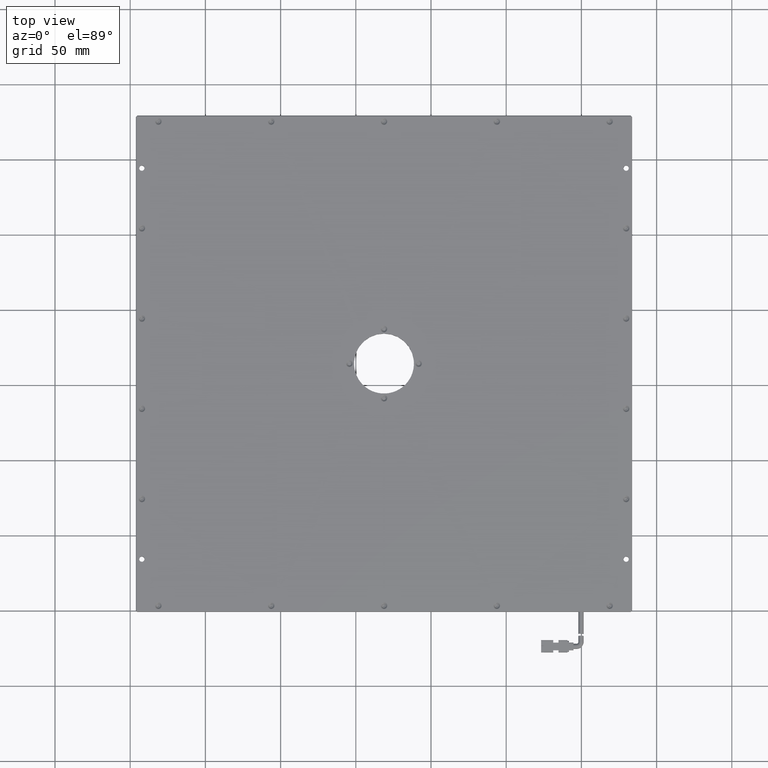
[diagram: clean part render]
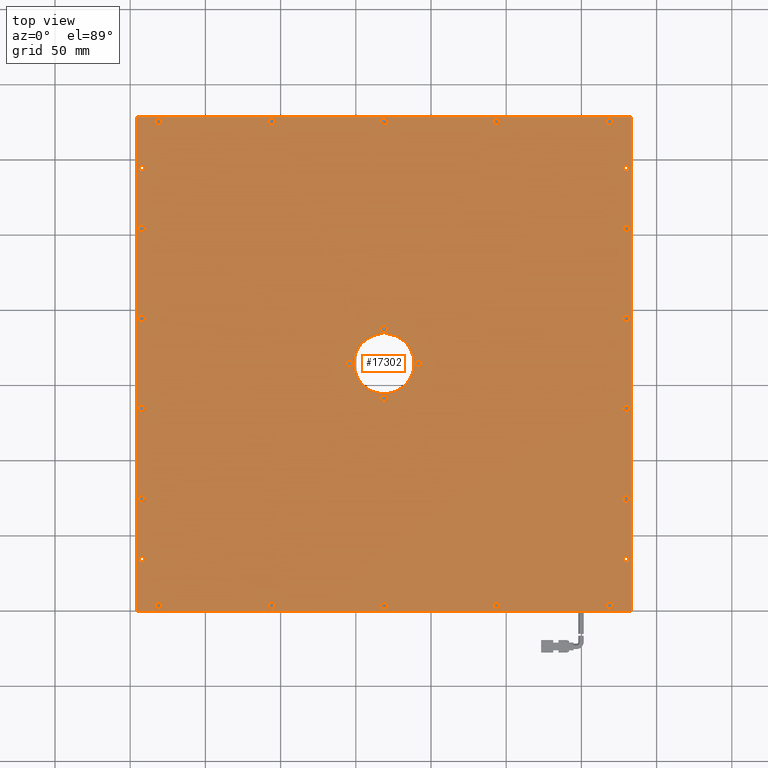
[diagram: same view with one face highlighted and labeled with its STEP entity id]
A machine part, top view. The second image highlights one B-rep face of the part: STEP entity #17302.
In plain terms, the highlighted planar face has unit normal (0, -0, 1).
Its self-contained STEP definition (entity closure, byte-faithful):
#33 = CARTESIAN_POINT ( 'NONE',  ( 127.9560923609355300, 194.3065740479059700, 11.00000000001909900 ) ) ;
#52 = ORIENTED_EDGE ( 'NONE', *, *, #5779, .T. ) ;
#147 = ORIENTED_EDGE ( 'NONE', *, *, #25554, .T. ) ;
#316 = AXIS2_PLACEMENT_3D ( 'NONE', #30000, #24757, #29682 ) ;
#416 = EDGE_LOOP ( 'NONE', ( #20714, #13644 ) ) ;
#508 = VERTEX_POINT ( 'NONE', #6118 ) ;
#514 = VERTEX_POINT ( 'NONE', #29227 ) ;
#544 = CARTESIAN_POINT ( 'NONE',  ( 43.75609236093549700, -98.89342595213524600, 11.00000000006184600 ) ) ;
#604 = DIRECTION ( 'NONE',  ( 1.000000000000000000, 0.0000000000000000000, 0.0000000000000000000 ) ) ;
#681 = DIRECTION ( 'NONE',  ( 1.000000000000000000, 0.0000000000000000000, 0.0000000000000000000 ) ) ;
#701 = ORIENTED_EDGE ( 'NONE', *, *, #27179, .T. ) ;
#720 = AXIS2_PLACEMENT_3D ( 'NONE', #2080, #27772, #6787 ) ;
#838 = VERTEX_POINT ( 'NONE', #2046 ) ;
#866 = CARTESIAN_POINT ( 'NONE',  ( -31.24390763906448100, 225.3065740479060500, 11.00000000000500200 ) ) ;
#975 = DIRECTION ( 'NONE',  ( 0.0000000000000000000, 0.0000000000000000000, -1.000000000000000000 ) ) ;
#1015 = EDGE_LOOP ( 'NONE', ( #21600, #27274 ) ) ;
#1057 = DIRECTION ( 'NONE',  ( 1.000000000000000000, 0.0000000000000000000, 0.0000000000000000000 ) ) ;
#1175 = LINE ( 'NONE', #10988, #3589 ) ;
#1269 = EDGE_CURVE ( 'NONE', #15652, #14264, #33111, .T. ) ;
#1294 = EDGE_LOOP ( 'NONE', ( #22141, #10028 ) ) ;
#1316 = CARTESIAN_POINT ( 'NONE',  ( -181.2439076390644700, 225.3065740479060500, 11.00000000000500200 ) ) ;
#1332 = CARTESIAN_POINT ( 'NONE',  ( -106.2439076390644600, 225.3065740479060500, 11.00000000000500200 ) ) ;
#1427 = ORIENTED_EDGE ( 'NONE', *, *, #20420, .T. ) ;
#1441 = CARTESIAN_POINT ( 'NONE',  ( 120.9560923609085100, -96.69342595209401700, 11.00000000000500200 ) ) ;
#1525 = DIRECTION ( 'NONE',  ( -0.0000000000000000000, 0.0000000000000000000, -1.000000000000000000 ) ) ;
#1578 = DIRECTION ( 'NONE',  ( -0.0000000000000000000, 0.0000000000000000000, -1.000000000000000000 ) ) ;
#1599 = CARTESIAN_POINT ( 'NONE',  ( -192.2439076390644700, 154.3065740479060000, 11.00000000000500200 ) ) ;
#1649 = CIRCLE ( 'NONE', #25173, 2.199999999973001300 ) ;
#1719 = EDGE_CURVE ( 'NONE', #5212, #28199, #7647, .T. ) ;
#1752 = EDGE_CURVE ( 'NONE', #14561, #838, #20515, .T. ) ;
#1768 = VERTEX_POINT ( 'NONE', #19360 ) ;
#1794 = CARTESIAN_POINT ( 'NONE',  ( -31.24390763906448100, -96.69342595209404600, 11.00000000000500200 ) ) ;
#1800 = ORIENTED_EDGE ( 'NONE', *, *, #23138, .T. ) ;
#1896 = CARTESIAN_POINT ( 'NONE',  ( 131.9560923609894600, 34.30657404790599000, 11.00000000011868900 ) ) ;
#2046 = CARTESIAN_POINT ( 'NONE',  ( -104.0439076390573800, 225.3065740479060500, 11.00000000000500200 ) ) ;
#2051 = EDGE_CURVE ( 'NONE', #19882, #33116, #16905, .T. ) ;
#2080 = CARTESIAN_POINT ( 'NONE',  ( -192.2439076390644700, -25.69342595209400700, 11.00000000000500200 ) ) ;
#2108 = AXIS2_PLACEMENT_3D ( 'NONE', #27863, #17732, #7635 ) ;
#2138 = CARTESIAN_POINT ( 'NONE',  ( 133.2560923609355500, 228.8065740479060000, 11.00000000001909400 ) ) ;
#2197 = EDGE_LOOP ( 'NONE', ( #15312, #8817 ) ) ;
#2245 = DIRECTION ( 'NONE',  ( 0.0000000000000000000, 0.0000000000000000000, -1.000000000000000000 ) ) ;
#2280 = CIRCLE ( 'NONE', #27025, 2.199999999995733400 ) ;
#2386 = EDGE_CURVE ( 'NONE', #508, #25226, #30108, .T. ) ;
#2421 = CARTESIAN_POINT ( 'NONE',  ( 133.2560923609355800, 229.3065740479060500, 11.00000000001909900 ) ) ;
#2534 = AXIS2_PLACEMENT_3D ( 'NONE', #2718, #15683, #10313 ) ;
#2602 = VECTOR ( 'NONE', #14455, 1000.000000000000000 ) ;
#2714 = EDGE_CURVE ( 'NONE', #1768, #29849, #1175, .T. ) ;
#2718 = CARTESIAN_POINT ( 'NONE',  ( 129.7560923609355300, -65.69342595209401700, 11.00000000001909900 ) ) ;
#2800 = CARTESIAN_POINT ( 'NONE',  ( 129.7560923609355300, 34.30657404790599000, 11.00000000011868900 ) ) ;
#2960 = DIRECTION ( 'NONE',  ( 1.000000000000000000, 0.0000000000000000000, 0.0000000000000000000 ) ) ;
#3006 = FACE_BOUND ( 'NONE', #19693, .T. ) ;
#3007 = CARTESIAN_POINT ( 'NONE',  ( 129.7560923609355300, 194.3065740479059700, 11.00000000001909900 ) ) ;
#3060 = EDGE_CURVE ( 'NONE', #8221, #4423, #20779, .T. ) ;
#3066 = DIRECTION ( 'NONE',  ( 1.000000000000000000, 0.0000000000000000000, 0.0000000000000000000 ) ) ;
#3075 = CARTESIAN_POINT ( 'NONE',  ( 118.7560923609355100, 225.3065740479061100, 11.00000000000500200 ) ) ;
#3079 = AXIS2_PLACEMENT_3D ( 'NONE', #18876, #8688, #23982 ) ;
#3134 = CIRCLE ( 'NONE', #21048, 2.200000000053936600 ) ;
#3195 = DIRECTION ( 'NONE',  ( 0.0000000000000000000, 0.0000000000000000000, -1.000000000000000000 ) ) ;
#3254 = EDGE_CURVE ( 'NONE', #33116, #19882, #31546, .T. ) ;
#3290 = VERTEX_POINT ( 'NONE', #25300 ) ;
#3398 = FACE_BOUND ( 'NONE', #14536, .T. ) ;
#3454 = CARTESIAN_POINT ( 'NONE',  ( -29.04390763906874900, 225.3065740479060500, 11.00000000000500200 ) ) ;
#3586 = CARTESIAN_POINT ( 'NONE',  ( -192.2439076390644700, 34.30657404790599000, 11.00000000000500200 ) ) ;
#3589 = VECTOR ( 'NONE', #5929, 1000.000000000000000 ) ;
#3646 = DIRECTION ( 'NONE',  ( 0.0000000000000000000, -1.000000000000000000, 0.0000000000000000000 ) ) ;
#4003 = VERTEX_POINT ( 'NONE', #18270 ) ;
#4070 = CIRCLE ( 'NONE', #28609, 2.200000000053936600 ) ;
#4104 = EDGE_CURVE ( 'NONE', #22257, #31822, #16161, .T. ) ;
#4198 = FACE_BOUND ( 'NONE', #14944, .T. ) ;
#4423 = VERTEX_POINT ( 'NONE', #31004 ) ;
#4431 = CIRCLE ( 'NONE', #26958, 2.199999999937529700 ) ;
#4499 = VERTEX_POINT ( 'NONE', #10161 ) ;
#4514 = ORIENTED_EDGE ( 'NONE', *, *, #5119, .F. ) ;
#4575 = ORIENTED_EDGE ( 'NONE', *, *, #21381, .T. ) ;
#4618 = FACE_BOUND ( 'NONE', #13756, .T. ) ;
#4785 = CARTESIAN_POINT ( 'NONE',  ( -190.0439076391269600, -25.69342595209400700, 11.00000000000500200 ) ) ;
#5091 = CARTESIAN_POINT ( 'NONE',  ( -29.04390763901190600, 41.30657404790602500, 10.99999999994815900 ) ) ;
#5119 = EDGE_CURVE ( 'NONE', #27300, #1768, #24681, .T. ) ;
#5195 = DIRECTION ( 'NONE',  ( -0.0000000000000000000, 0.0000000000000000000, -1.000000000000000000 ) ) ;
#5198 = DIRECTION ( 'NONE',  ( 1.000000000000000000, 0.0000000000000000000, 0.0000000000000000000 ) ) ;
#5212 = VERTEX_POINT ( 'NONE', #1896 ) ;
#5375 = DIRECTION ( 'NONE',  ( -0.0000000000000000000, 0.0000000000000000000, -1.000000000000000000 ) ) ;
#5431 = DIRECTION ( 'NONE',  ( -0.0000000000000000000, 0.0000000000000000000, -1.000000000000000000 ) ) ;
#5438 = CIRCLE ( 'NONE', #720, 2.199999999937529700 ) ;
#5443 = CARTESIAN_POINT ( 'NONE',  ( 131.5560923609355100, -65.69342595209401700, 11.00000000001909900 ) ) ;
#5563 = DIRECTION ( 'NONE',  ( 1.000000000000000000, 0.0000000000000000000, 0.0000000000000000000 ) ) ;
#5598 = CARTESIAN_POINT ( 'NONE',  ( -108.4439076390715500, 225.3065740479060500, 11.00000000000500200 ) ) ;
#5616 = CARTESIAN_POINT ( 'NONE',  ( -104.0439076390573800, -96.69342595209406000, 11.00000000000500200 ) ) ;
#5630 = AXIS2_PLACEMENT_3D ( 'NONE', #29123, #975, #11276 ) ;
#5633 = CARTESIAN_POINT ( 'NONE',  ( -33.44390763911695100, 41.30657404790602500, 10.99999999994815900 ) ) ;
#5701 = CIRCLE ( 'NONE', #29700, 1.799999999999968300 ) ;
#5705 = DIRECTION ( 'NONE',  ( 1.000000000000000000, 0.0000000000000000000, 0.0000000000000000000 ) ) ;
#5735 = CARTESIAN_POINT ( 'NONE',  ( 129.7560923609355300, 94.30657404790598300, 11.00000000011868900 ) ) ;
#5757 = CARTESIAN_POINT ( 'NONE',  ( -192.2439076390644700, 194.3065740479059700, 11.00000000001909900 ) ) ;
#5779 = EDGE_CURVE ( 'NONE', #25419, #27421, #20135, .T. ) ;
#5783 = EDGE_LOOP ( 'NONE', ( #7708, #18981 ) ) ;
#5899 = DIRECTION ( 'NONE',  ( 1.000000000000000000, 0.0000000000000000000, 0.0000000000000000000 ) ) ;
#5905 = AXIS2_PLACEMENT_3D ( 'NONE', #29339, #16285, #3646 ) ;
#5922 = DIRECTION ( 'NONE',  ( -0.0000000000000000000, 0.0000000000000000000, -1.000000000000000000 ) ) ;
#5929 = DIRECTION ( 'NONE',  ( -0.0000000000000000000, 1.000000000000000000, 0.0000000000000000000 ) ) ;
#6023 = DIRECTION ( 'NONE',  ( -0.0000000000000000000, 0.0000000000000000000, -1.000000000000000000 ) ) ;
#6118 = CARTESIAN_POINT ( 'NONE',  ( -179.0439076390460100, -96.69342595209407400, 11.00000000000500200 ) ) ;
#6148 = DIRECTION ( 'NONE',  ( 1.000000000000000000, 0.0000000000000000000, 0.0000000000000000000 ) ) ;
#6162 = ORIENTED_EDGE ( 'NONE', *, *, #8274, .T. ) ;
#6198 = DIRECTION ( 'NONE',  ( 1.000000000000000000, 8.410780489584517900E-017, 8.410780489584517900E-017 ) ) ;
#6229 = EDGE_CURVE ( 'NONE', #19887, #3290, #25278, .T. ) ;
#6245 = DIRECTION ( 'NONE',  ( 1.000000000000000000, 0.0000000000000000000, 0.0000000000000000000 ) ) ;
#6317 = VERTEX_POINT ( 'NONE', #18044 ) ;
#6362 = CIRCLE ( 'NONE', #316, 2.200000000052576800 ) ;
#6387 = ORIENTED_EDGE ( 'NONE', *, *, #32771, .T. ) ;
#6407 = DIRECTION ( 'NONE',  ( 1.000000000000000000, 0.0000000000000000000, 0.0000000000000000000 ) ) ;
#6413 = DIRECTION ( 'NONE',  ( -0.0000000000000000000, 0.0000000000000000000, -1.000000000000000000 ) ) ;
#6414 = AXIS2_PLACEMENT_3D ( 'NONE', #28826, #5922, #5705 ) ;
#6620 = DIRECTION ( 'NONE',  ( 1.000000000000000000, 0.0000000000000000000, 0.0000000000000000000 ) ) ;
#6669 = CIRCLE ( 'NONE', #19507, 20.00000000000001800 ) ;
#6739 = CARTESIAN_POINT ( 'NONE',  ( 43.75609236093549700, -94.49342595205280300, 11.00000000006184600 ) ) ;
#6787 = DIRECTION ( 'NONE',  ( 1.000000000000000000, 0.0000000000000000000, 0.0000000000000000000 ) ) ;
#6949 = ORIENTED_EDGE ( 'NONE', *, *, #19142, .T. ) ;
#6953 = CARTESIAN_POINT ( 'NONE',  ( -194.4439076390020200, 154.3065740479060000, 11.00000000000500200 ) ) ;
#6983 = CIRCLE ( 'NONE', #25768, 2.200000000084828300 ) ;
#7023 = AXIS2_PLACEMENT_3D ( 'NONE', #32008, #29478, #6245 ) ;
#7062 = DIRECTION ( 'NONE',  ( -0.0000000000000000000, 0.0000000000000000000, -1.000000000000000000 ) ) ;
#7118 = CARTESIAN_POINT ( 'NONE',  ( -190.4439076390645200, -65.69342595209401700, 11.00000000001909900 ) ) ;
#7158 = DIRECTION ( 'NONE',  ( 1.000000000000000000, 0.0000000000000000000, 0.0000000000000000000 ) ) ;
#7233 = CIRCLE ( 'NONE', #32077, 1.799999999999968300 ) ;
#7370 = ORIENTED_EDGE ( 'NONE', *, *, #30140, .T. ) ;
#7425 = EDGE_CURVE ( 'NONE', #28199, #5212, #25695, .T. ) ;
#7526 = VECTOR ( 'NONE', #25301, 1000.000000000000000 ) ;
#7629 = DIRECTION ( 'NONE',  ( -0.0000000000000000000, 0.0000000000000000000, -1.000000000000000000 ) ) ;
#7635 = DIRECTION ( 'NONE',  ( 1.000000000000000000, 0.0000000000000000000, 0.0000000000000000000 ) ) ;
#7642 = AXIS2_PLACEMENT_3D ( 'NONE', #14621, #27225, #16876 ) ;
#7647 = CIRCLE ( 'NONE', #6414, 2.200000000053936600 ) ;
#7708 = ORIENTED_EDGE ( 'NONE', *, *, #17029, .T. ) ;
#7732 = EDGE_CURVE ( 'NONE', #22564, #27096, #20821, .T. ) ;
#7761 = AXIS2_PLACEMENT_3D ( 'NONE', #33226, #12605, #25413 ) ;
#7830 = CARTESIAN_POINT ( 'NONE',  ( -29.04390763901190600, 87.30657404790598300, 10.99999999994815900 ) ) ;
#7848 = VERTEX_POINT ( 'NONE', #16773 ) ;
#8188 = CIRCLE ( 'NONE', #10505, 2.199999999937529700 ) ;
#8221 = VERTEX_POINT ( 'NONE', #31169 ) ;
#8260 = CIRCLE ( 'NONE', #2108, 2.199999999937529700 ) ;
#8274 = EDGE_CURVE ( 'NONE', #32684, #11418, #2280, .T. ) ;
#8309 = DIRECTION ( 'NONE',  ( 1.000000000000000000, 0.0000000000000000000, 0.0000000000000000000 ) ) ;
#8340 = EDGE_CURVE ( 'NONE', #29849, #30952, #15501, .T. ) ;
#8362 = DIRECTION ( 'NONE',  ( -0.0000000000000000000, 0.0000000000000000000, -1.000000000000000000 ) ) ;
#8497 = DIRECTION ( 'NONE',  ( -0.0000000000000000000, 0.0000000000000000000, -1.000000000000000000 ) ) ;
#8644 = ORIENTED_EDGE ( 'NONE', *, *, #1752, .T. ) ;
#8688 = DIRECTION ( 'NONE',  ( -0.0000000000000000000, -9.856383386047164300E-017, -1.000000000000000000 ) ) ;
#8745 = DIRECTION ( 'NONE',  ( 0.0000000000000000000, 0.0000000000000000000, -1.000000000000000000 ) ) ;
#8762 = DIRECTION ( 'NONE',  ( 1.000000000000000000, 0.0000000000000000000, 0.0000000000000000000 ) ) ;
#8817 = ORIENTED_EDGE ( 'NONE', *, *, #9297, .T. ) ;
#8886 = CIRCLE ( 'NONE', #22380, 2.199999999995733400 ) ;
#8981 = DIRECTION ( 'NONE',  ( 1.000000000000000000, 0.0000000000000000000, 0.0000000000000000000 ) ) ;
#9068 = CARTESIAN_POINT ( 'NONE',  ( -192.2439076390644700, -65.69342595209401700, 11.00000000001909900 ) ) ;
#9166 = VERTEX_POINT ( 'NONE', #28516 ) ;
#9297 = EDGE_CURVE ( 'NONE', #22547, #9674, #29858, .T. ) ;
#9392 = ORIENTED_EDGE ( 'NONE', *, *, #3060, .T. ) ;
#9563 = CARTESIAN_POINT ( 'NONE',  ( 129.7560923609355300, 154.3065740479060000, 11.00000000011868900 ) ) ;
#9674 = VERTEX_POINT ( 'NONE', #1441 ) ;
#9887 = EDGE_CURVE ( 'NONE', #28131, #16238, #24175, .T. ) ;
#9992 = CIRCLE ( 'NONE', #11547, 2.199999999937529700 ) ;
#10028 = ORIENTED_EDGE ( 'NONE', *, *, #20439, .T. ) ;
#10069 = CARTESIAN_POINT ( 'NONE',  ( -181.2439076390644700, -96.69342595209407400, 11.00000000000500200 ) ) ;
#10093 = EDGE_CURVE ( 'NONE', #21376, #24429, #32130, .T. ) ;
#10161 = CARTESIAN_POINT ( 'NONE',  ( -6.043907638987350100, 64.30657404790579800, 10.99999999994815900 ) ) ;
#10177 = FACE_BOUND ( 'NONE', #32117, .T. ) ;
#10225 = CARTESIAN_POINT ( 'NONE',  ( -8.243907639064490300, 64.30657404790579800, 10.99999999994815900 ) ) ;
#10264 = AXIS2_PLACEMENT_3D ( 'NONE', #10225, #5195, #2960 ) ;
#10313 = DIRECTION ( 'NONE',  ( 1.000000000000000000, 0.0000000000000000000, 0.0000000000000000000 ) ) ;
#10315 = CIRCLE ( 'NONE', #23817, 2.199999999973001300 ) ;
#10332 = CIRCLE ( 'NONE', #13772, 1.799999999999968300 ) ;
#10344 = DIRECTION ( 'NONE',  ( 0.0000000000000000000, 0.0000000000000000000, -1.000000000000000000 ) ) ;
#10505 = AXIS2_PLACEMENT_3D ( 'NONE', #19412, #19726, #14567 ) ;
#10514 = AXIS2_PLACEMENT_3D ( 'NONE', #32175, #21783, #1057 ) ;
#10524 = EDGE_LOOP ( 'NONE', ( #14512, #4514, #23884, #18216 ) ) ;
#10671 = DIRECTION ( 'NONE',  ( 0.0000000000000000000, 0.0000000000000000000, -1.000000000000000000 ) ) ;
#10737 = CARTESIAN_POINT ( 'NONE',  ( 120.9560923609085100, 225.3065740479061100, 11.00000000000500200 ) ) ;
#10938 = EDGE_CURVE ( 'NONE', #4003, #30854, #14624, .T. ) ;
#10988 = CARTESIAN_POINT ( 'NONE',  ( -195.7439076390643900, 229.3065740479060500, 11.00000000001909900 ) ) ;
#11011 = FACE_BOUND ( 'NONE', #27331, .T. ) ;
#11068 = DIRECTION ( 'NONE',  ( 1.000000000000000000, 0.0000000000000000000, 0.0000000000000000000 ) ) ;
#11276 = DIRECTION ( 'NONE',  ( 1.000000000000000000, 0.0000000000000000000, 0.0000000000000000000 ) ) ;
#11284 = EDGE_CURVE ( 'NONE', #30854, #4003, #27813, .T. ) ;
#11395 = CARTESIAN_POINT ( 'NONE',  ( -31.24390763906445700, 64.30657404790599700, 11.00000000001909900 ) ) ;
#11418 = VERTEX_POINT ( 'NONE', #29838 ) ;
#11424 = FACE_BOUND ( 'NONE', #1015, .T. ) ;
#11437 = AXIS2_PLACEMENT_3D ( 'NONE', #21406, #6023, #29371 ) ;
#11496 = EDGE_CURVE ( 'NONE', #16238, #28131, #13330, .T. ) ;
#11499 = CIRCLE ( 'NONE', #16852, 2.199999999973001300 ) ;
#11547 = AXIS2_PLACEMENT_3D ( 'NONE', #1599, #24164, #8762 ) ;
#11631 = ORIENTED_EDGE ( 'NONE', *, *, #10938, .T. ) ;
#11656 = CIRCLE ( 'NONE', #7023, 2.200000000084828300 ) ;
#11715 = EDGE_LOOP ( 'NONE', ( #23035, #19830 ) ) ;
#11761 = CIRCLE ( 'NONE', #27347, 2.200000000052520800 ) ;
#11843 = ORIENTED_EDGE ( 'NONE', *, *, #1719, .T. ) ;
#12110 = VERTEX_POINT ( 'NONE', #28862 ) ;
#12355 = VERTEX_POINT ( 'NONE', #17581 ) ;
#12466 = AXIS2_PLACEMENT_3D ( 'NONE', #21796, #6413, #8981 ) ;
#12543 = CARTESIAN_POINT ( 'NONE',  ( -192.2439076390644700, 194.3065740479059700, 11.00000000001909900 ) ) ;
#12605 = DIRECTION ( 'NONE',  ( -0.0000000000000000000, 0.0000000000000000000, -1.000000000000000000 ) ) ;
#12778 = DIRECTION ( 'NONE',  ( 1.000000000000000000, 0.0000000000000000000, 0.0000000000000000000 ) ) ;
#12856 = EDGE_CURVE ( 'NONE', #9674, #22547, #10315, .T. ) ;
#12953 = DIRECTION ( 'NONE',  ( -0.0000000000000000000, 0.0000000000000000000, -1.000000000000000000 ) ) ;
#12957 = CARTESIAN_POINT ( 'NONE',  ( -194.0439076390644600, -65.69342595209401700, 11.00000000001909900 ) ) ;
#13073 = DIRECTION ( 'NONE',  ( 1.000000000000000000, 0.0000000000000000000, 0.0000000000000000000 ) ) ;
#13166 = CARTESIAN_POINT ( 'NONE',  ( -31.24390763906442800, 41.30657404790602500, 10.99999999994815900 ) ) ;
#13257 = DIRECTION ( 'NONE',  ( 1.000000000000000000, 0.0000000000000000000, 0.0000000000000000000 ) ) ;
#13330 = CIRCLE ( 'NONE', #5905, 2.200000000041224500 ) ;
#13371 = EDGE_LOOP ( 'NONE', ( #32201, #6387 ) ) ;
#13421 = FACE_BOUND ( 'NONE', #31483, .T. ) ;
#13503 = EDGE_CURVE ( 'NONE', #14340, #6317, #23998, .T. ) ;
#13504 = AXIS2_PLACEMENT_3D ( 'NONE', #1794, #1578, #24908 ) ;
#13507 = DIRECTION ( 'NONE',  ( 1.000000000000000000, 0.0000000000000000000, 0.0000000000000000000 ) ) ;
#13523 = DIRECTION ( 'NONE',  ( 0.0000000000000000000, -0.0000000000000000000, 1.000000000000000000 ) ) ;
#13544 = ORIENTED_EDGE ( 'NONE', *, *, #26786, .T. ) ;
#13549 = AXIS2_PLACEMENT_3D ( 'NONE', #10069, #7062, #17373 ) ;
#13644 = ORIENTED_EDGE ( 'NONE', *, *, #3254, .T. ) ;
#13739 = EDGE_CURVE ( 'NONE', #7848, #9166, #8260, .T. ) ;
#13756 = EDGE_LOOP ( 'NONE', ( #31473, #26467 ) ) ;
#13762 = DIRECTION ( 'NONE',  ( -0.0000000000000000000, 0.0000000000000000000, -1.000000000000000000 ) ) ;
#13772 = AXIS2_PLACEMENT_3D ( 'NONE', #9068, #8745, #6620 ) ;
#13920 = CARTESIAN_POINT ( 'NONE',  ( 116.5560923609625100, -96.69342595209401700, 11.00000000000500200 ) ) ;
#13950 = CARTESIAN_POINT ( 'NONE',  ( -29.04390763906874900, -96.69342595209404600, 11.00000000000500200 ) ) ;
#14004 = LINE ( 'NONE', #2421, #7526 ) ;
#14094 = EDGE_CURVE ( 'NONE', #14216, #12355, #8188, .T. ) ;
#14104 = DIRECTION ( 'NONE',  ( 1.000000000000000000, 0.0000000000000000000, 0.0000000000000000000 ) ) ;
#14216 = VERTEX_POINT ( 'NONE', #6953 ) ;
#14232 = FACE_BOUND ( 'NONE', #29643, .T. ) ;
#14255 = ORIENTED_EDGE ( 'NONE', *, *, #2386, .T. ) ;
#14264 = VERTEX_POINT ( 'NONE', #25140 ) ;
#14340 = VERTEX_POINT ( 'NONE', #15456 ) ;
#14365 = ORIENTED_EDGE ( 'NONE', *, *, #11284, .T. ) ;
#14455 = DIRECTION ( 'NONE',  ( -1.000000000000000000, -6.123233995737446400E-017, 6.123233995736764800E-017 ) ) ;
#14466 = EDGE_CURVE ( 'NONE', #32119, #28474, #17812, .T. ) ;
#14512 = ORIENTED_EDGE ( 'NONE', *, *, #2714, .F. ) ;
#14536 = EDGE_LOOP ( 'NONE', ( #701, #28103 ) ) ;
#14561 = VERTEX_POINT ( 'NONE', #5598 ) ;
#14562 = ORIENTED_EDGE ( 'NONE', *, *, #31800, .T. ) ;
#14567 = DIRECTION ( 'NONE',  ( 1.000000000000000000, 0.0000000000000000000, 0.0000000000000000000 ) ) ;
#14621 = CARTESIAN_POINT ( 'NONE',  ( -106.2439076390644600, 225.3065740479060500, 11.00000000000500200 ) ) ;
#14624 = CIRCLE ( 'NONE', #15308, 2.200000000053936600 ) ;
#14631 = AXIS2_PLACEMENT_3D ( 'NONE', #31999, #19236, #27217 ) ;
#14816 = ORIENTED_EDGE ( 'NONE', *, *, #9887, .T. ) ;
#14944 = EDGE_LOOP ( 'NONE', ( #17458, #23142 ) ) ;
#14979 = AXIS2_PLACEMENT_3D ( 'NONE', #1332, #19257, #29375 ) ;
#14983 = DIRECTION ( 'NONE',  ( -0.0000000000000000000, 0.0000000000000000000, -1.000000000000000000 ) ) ;
#15105 = VECTOR ( 'NONE', #6198, 1000.000000000000000 ) ;
#15308 = AXIS2_PLACEMENT_3D ( 'NONE', #23518, #12953, #13073 ) ;
#15312 = ORIENTED_EDGE ( 'NONE', *, *, #12856, .T. ) ;
#15456 = CARTESIAN_POINT ( 'NONE',  ( -11.24390763906443700, 64.30657404790599700, 11.00000000001909900 ) ) ;
#15491 = CARTESIAN_POINT ( 'NONE',  ( 127.5560923608815800, -25.69342595209400700, 11.00000000011868900 ) ) ;
#15501 = LINE ( 'NONE', #23949, #15105 ) ;
#15508 = EDGE_CURVE ( 'NONE', #24482, #25343, #7233, .T. ) ;
#15537 = CARTESIAN_POINT ( 'NONE',  ( -183.4439076390829400, -96.69342595209407400, 11.00000000000500200 ) ) ;
#15629 = DIRECTION ( 'NONE',  ( 0.0000000000000000000, 0.0000000000000000000, -1.000000000000000000 ) ) ;
#15652 = VERTEX_POINT ( 'NONE', #13950 ) ;
#15683 = DIRECTION ( 'NONE',  ( 0.0000000000000000000, 0.0000000000000000000, -1.000000000000000000 ) ) ;
#15710 = DIRECTION ( 'NONE',  ( 1.000000000000000000, 0.0000000000000000000, 0.0000000000000000000 ) ) ;
#15797 = FACE_BOUND ( 'NONE', #24873, .T. ) ;
#15801 = ORIENTED_EDGE ( 'NONE', *, *, #6229, .T. ) ;
#15806 = CARTESIAN_POINT ( 'NONE',  ( 129.7560923609355300, -65.69342595209401700, 11.00000000001909900 ) ) ;
#16048 = ORIENTED_EDGE ( 'NONE', *, *, #13739, .T. ) ;
#16079 = EDGE_LOOP ( 'NONE', ( #7370, #8644 ) ) ;
#16161 = CIRCLE ( 'NONE', #26078, 2.200000000007085200 ) ;
#16165 = CARTESIAN_POINT ( 'NONE',  ( -31.24390763906448100, 87.30657404790598300, 10.99999999994815900 ) ) ;
#16207 = CIRCLE ( 'NONE', #24494, 2.200000000007085200 ) ;
#16219 = EDGE_CURVE ( 'NONE', #31783, #32592, #10332, .T. ) ;
#16238 = VERTEX_POINT ( 'NONE', #24140 ) ;
#16259 = CARTESIAN_POINT ( 'NONE',  ( -52.04390763897961800, 64.30657404790603900, 10.99999999994815900 ) ) ;
#16285 = DIRECTION ( 'NONE',  ( -0.0000000000000000000, -9.856383386047164300E-017, -1.000000000000000000 ) ) ;
#16309 = ORIENTED_EDGE ( 'NONE', *, *, #29220, .T. ) ;
#16345 = VERTEX_POINT ( 'NONE', #27283 ) ;
#16544 = DIRECTION ( 'NONE',  ( -0.0000000000000000000, 0.0000000000000000000, -1.000000000000000000 ) ) ;
#16637 = CARTESIAN_POINT ( 'NONE',  ( -183.4439076390829400, 225.3065740479060500, 11.00000000000500200 ) ) ;
#16656 = DIRECTION ( 'NONE',  ( -0.0000000000000000000, -0.0000000000000000000, -1.000000000000000000 ) ) ;
#16719 = AXIS2_PLACEMENT_3D ( 'NONE', #27251, #27145, #29501 ) ;
#16773 = CARTESIAN_POINT ( 'NONE',  ( -194.4439076390020200, 94.30657404790598300, 11.00000000000500200 ) ) ;
#16852 = AXIS2_PLACEMENT_3D ( 'NONE', #3075, #28972, #29087 ) ;
#16876 = DIRECTION ( 'NONE',  ( 1.000000000000000000, 0.0000000000000000000, 0.0000000000000000000 ) ) ;
#16905 = CIRCLE ( 'NONE', #20612, 1.799999999999996000 ) ;
#17019 = CIRCLE ( 'NONE', #10264, 2.200000000077140200 ) ;
#17029 = EDGE_CURVE ( 'NONE', #21757, #24683, #5438, .T. ) ;
#17171 = EDGE_CURVE ( 'NONE', #14264, #15652, #27493, .T. ) ;
#17302 = ADVANCED_FACE ( 'NONE', ( #32251, #31443, #15797, #18606, #22666, #30261, #10177, #24660, #11424, #13421, #17799, #32670, #11011, #4198, #14232, #23475, #27081, #20251, #3006, #33043, #26271, #30632, #23865, #3398, #23052, #4618, #19840, #31043 ), #23620, .T. ) ;
#17370 = VERTEX_POINT ( 'NONE', #16637 ) ;
#17373 = DIRECTION ( 'NONE',  ( 1.000000000000000000, 0.0000000000000000000, 0.0000000000000000000 ) ) ;
#17452 = CARTESIAN_POINT ( 'NONE',  ( 129.7560923609355300, 154.3065740479060000, 11.00000000011868900 ) ) ;
#17458 = ORIENTED_EDGE ( 'NONE', *, *, #30678, .T. ) ;
#17581 = CARTESIAN_POINT ( 'NONE',  ( -190.0439076391269600, 154.3065740479060000, 11.00000000000500200 ) ) ;
#17597 = CARTESIAN_POINT ( 'NONE',  ( 127.5560923608815800, 94.30657404790598300, 11.00000000011868900 ) ) ;
#17732 = DIRECTION ( 'NONE',  ( -0.0000000000000000000, 0.0000000000000000000, -1.000000000000000000 ) ) ;
#17799 = FACE_BOUND ( 'NONE', #2197, .T. ) ;
#17812 = CIRCLE ( 'NONE', #18703, 2.200000000053936600 ) ;
#18044 = CARTESIAN_POINT ( 'NONE',  ( -51.24390763906447400, 64.30657404790599700, 11.00000000001909900 ) ) ;
#18058 = CARTESIAN_POINT ( 'NONE',  ( -106.2439076390644600, -96.69342595209406000, 11.00000000000500200 ) ) ;
#18070 = AXIS2_PLACEMENT_3D ( 'NONE', #15806, #10671, #3066 ) ;
#18089 = CARTESIAN_POINT ( 'NONE',  ( -31.24390763906445700, 64.30657404790599700, 11.00000000001909900 ) ) ;
#18216 = ORIENTED_EDGE ( 'NONE', *, *, #8340, .F. ) ;
#18257 = CARTESIAN_POINT ( 'NONE',  ( 133.2560923609355300, -100.1934259520939900, 11.00000000001911900 ) ) ;
#18270 = CARTESIAN_POINT ( 'NONE',  ( 131.9560923609894600, 94.30657404790598300, 11.00000000011868900 ) ) ;
#18315 = CARTESIAN_POINT ( 'NONE',  ( 133.7560923609355300, 229.3065740479060500, 11.00000000001909900 ) ) ;
#18534 = DIRECTION ( 'NONE',  ( 1.000000000000000000, 0.0000000000000000000, -0.0000000000000000000 ) ) ;
#18555 = CARTESIAN_POINT ( 'NONE',  ( -181.2439076390644700, 225.3065740479060500, 11.00000000000500200 ) ) ;
#18558 = EDGE_LOOP ( 'NONE', ( #21501, #52 ) ) ;
#18606 = FACE_BOUND ( 'NONE', #32424, .T. ) ;
#18643 = EDGE_LOOP ( 'NONE', ( #24293, #27773 ) ) ;
#18703 = AXIS2_PLACEMENT_3D ( 'NONE', #28944, #8497, #681 ) ;
#18711 = ORIENTED_EDGE ( 'NONE', *, *, #7732, .T. ) ;
#18762 = CIRCLE ( 'NONE', #29215, 1.799999999999968300 ) ;
#18876 = CARTESIAN_POINT ( 'NONE',  ( 43.75609236093549700, 225.3065740479061100, 11.00000000006184600 ) ) ;
#18981 = ORIENTED_EDGE ( 'NONE', *, *, #22158, .T. ) ;
#19142 = EDGE_CURVE ( 'NONE', #27103, #4499, #25666, .T. ) ;
#19160 = EDGE_LOOP ( 'NONE', ( #18711, #16309 ) ) ;
#19236 = DIRECTION ( 'NONE',  ( -0.0000000000000000000, -9.856383386047164300E-017, -1.000000000000000000 ) ) ;
#19257 = DIRECTION ( 'NONE',  ( -0.0000000000000000000, 0.0000000000000000000, -1.000000000000000000 ) ) ;
#19360 = CARTESIAN_POINT ( 'NONE',  ( -195.7439076390643900, -100.1934259520941200, 11.00000000001911400 ) ) ;
#19412 = CARTESIAN_POINT ( 'NONE',  ( -192.2439076390644700, 154.3065740479060000, 11.00000000000500200 ) ) ;
#19507 = AXIS2_PLACEMENT_3D ( 'NONE', #18089, #31078, #30645 ) ;
#19690 = ORIENTED_EDGE ( 'NONE', *, *, #21364, .T. ) ;
#19693 = EDGE_LOOP ( 'NONE', ( #31390, #147 ) ) ;
#19726 = DIRECTION ( 'NONE',  ( -0.0000000000000000000, 0.0000000000000000000, -1.000000000000000000 ) ) ;
#19728 = CARTESIAN_POINT ( 'NONE',  ( -194.0439076390644600, 194.3065740479059700, 11.00000000001909900 ) ) ;
#19830 = ORIENTED_EDGE ( 'NONE', *, *, #25641, .T. ) ;
#19840 = FACE_BOUND ( 'NONE', #18558, .T. ) ;
#19882 = VERTEX_POINT ( 'NONE', #33221 ) ;
#19887 = VERTEX_POINT ( 'NONE', #5443 ) ;
#19921 = EDGE_CURVE ( 'NONE', #6317, #14340, #6669, .T. ) ;
#20034 = DIRECTION ( 'NONE',  ( -0.0000000000000000000, 0.0000000000000000000, -1.000000000000000000 ) ) ;
#20135 = CIRCLE ( 'NONE', #21004, 2.200000000052576800 ) ;
#20251 = FACE_BOUND ( 'NONE', #19160, .T. ) ;
#20253 = CARTESIAN_POINT ( 'NONE',  ( -192.2439076390644700, -65.69342595209401700, 11.00000000001909900 ) ) ;
#20420 = EDGE_CURVE ( 'NONE', #4499, #27103, #17019, .T. ) ;
#20439 = EDGE_CURVE ( 'NONE', #31822, #22257, #16207, .T. ) ;
#20460 = DIRECTION ( 'NONE',  ( 1.000000000000000000, 0.0000000000000000000, 0.0000000000000000000 ) ) ;
#20470 = EDGE_CURVE ( 'NONE', #16345, #28643, #6983, .T. ) ;
#20515 = CIRCLE ( 'NONE', #14979, 2.200000000007085200 ) ;
#20612 = AXIS2_PLACEMENT_3D ( 'NONE', #3007, #15629, #5563 ) ;
#20714 = ORIENTED_EDGE ( 'NONE', *, *, #2051, .T. ) ;
#20779 = CIRCLE ( 'NONE', #29278, 2.200000000053936600 ) ;
#20821 = CIRCLE ( 'NONE', #11437, 2.199999999937529700 ) ;
#20887 = DIRECTION ( 'NONE',  ( -0.0000000000000000000, 0.0000000000000000000, -1.000000000000000000 ) ) ;
#20945 = ORIENTED_EDGE ( 'NONE', *, *, #7425, .T. ) ;
#21004 = AXIS2_PLACEMENT_3D ( 'NONE', #16165, #21363, #31302 ) ;
#21048 = AXIS2_PLACEMENT_3D ( 'NONE', #25287, #27870, #29906 ) ;
#21073 = ORIENTED_EDGE ( 'NONE', *, *, #17171, .T. ) ;
#21139 = AXIS2_PLACEMENT_3D ( 'NONE', #32101, #24512, #22040 ) ;
#21157 = EDGE_LOOP ( 'NONE', ( #1800, #16048 ) ) ;
#21276 = DIRECTION ( 'NONE',  ( -0.0000000000000000000, 0.0000000000000000000, -1.000000000000000000 ) ) ;
#21363 = DIRECTION ( 'NONE',  ( -0.0000000000000000000, 0.0000000000000000000, -1.000000000000000000 ) ) ;
#21364 = EDGE_CURVE ( 'NONE', #11418, #32684, #8886, .T. ) ;
#21376 = VERTEX_POINT ( 'NONE', #544 ) ;
#21381 = EDGE_CURVE ( 'NONE', #17370, #12110, #29393, .T. ) ;
#21406 = CARTESIAN_POINT ( 'NONE',  ( -192.2439076390644700, 34.30657404790599000, 11.00000000000500200 ) ) ;
#21448 = DIRECTION ( 'NONE',  ( -0.0000000000000000000, 0.0000000000000000000, -1.000000000000000000 ) ) ;
#21501 = ORIENTED_EDGE ( 'NONE', *, *, #23233, .T. ) ;
#21573 = EDGE_CURVE ( 'NONE', #29907, #514, #1649, .T. ) ;
#21584 = CIRCLE ( 'NONE', #31209, 2.200000000018465000 ) ;
#21600 = ORIENTED_EDGE ( 'NONE', *, *, #10093, .T. ) ;
#21737 = AXIS2_PLACEMENT_3D ( 'NONE', #18555, #21276, #5899 ) ;
#21757 = VERTEX_POINT ( 'NONE', #4785 ) ;
#21783 = DIRECTION ( 'NONE',  ( -0.0000000000000000000, 0.0000000000000000000, -1.000000000000000000 ) ) ;
#21796 = CARTESIAN_POINT ( 'NONE',  ( -192.2439076390644700, -25.69342595209400700, 11.00000000000500200 ) ) ;
#21800 = AXIS2_PLACEMENT_3D ( 'NONE', #18315, #13523, #18534 ) ;
#21829 = EDGE_CURVE ( 'NONE', #29394, #33168, #11761, .T. ) ;
#22040 = DIRECTION ( 'NONE',  ( 1.000000000000000000, 0.0000000000000000000, 0.0000000000000000000 ) ) ;
#22141 = ORIENTED_EDGE ( 'NONE', *, *, #4104, .T. ) ;
#22158 = EDGE_CURVE ( 'NONE', #24683, #21757, #30525, .T. ) ;
#22257 = VERTEX_POINT ( 'NONE', #5616 ) ;
#22318 = AXIS2_PLACEMENT_3D ( 'NONE', #11395, #16656, #26771 ) ;
#22346 = ORIENTED_EDGE ( 'NONE', *, *, #33074, .T. ) ;
#22380 = AXIS2_PLACEMENT_3D ( 'NONE', #866, #8362, #11068 ) ;
#22474 = AXIS2_PLACEMENT_3D ( 'NONE', #5735, #23704, #8309 ) ;
#22547 = VERTEX_POINT ( 'NONE', #13920 ) ;
#22564 = VERTEX_POINT ( 'NONE', #31941 ) ;
#22666 = FACE_BOUND ( 'NONE', #1294, .T. ) ;
#22851 = CIRCLE ( 'NONE', #27589, 2.200000000018465000 ) ;
#22909 = EDGE_LOOP ( 'NONE', ( #6162, #19690 ) ) ;
#22993 = ORIENTED_EDGE ( 'NONE', *, *, #28639, .T. ) ;
#23035 = ORIENTED_EDGE ( 'NONE', *, *, #16219, .T. ) ;
#23052 = FACE_BOUND ( 'NONE', #13371, .T. ) ;
#23138 = EDGE_CURVE ( 'NONE', #9166, #7848, #4431, .T. ) ;
#23142 = ORIENTED_EDGE ( 'NONE', *, *, #14094, .T. ) ;
#23152 = EDGE_CURVE ( 'NONE', #12110, #17370, #22851, .T. ) ;
#23233 = EDGE_CURVE ( 'NONE', #27421, #25419, #6362, .T. ) ;
#23475 = FACE_BOUND ( 'NONE', #21157, .T. ) ;
#23518 = CARTESIAN_POINT ( 'NONE',  ( 129.7560923609355300, 94.30657404790598300, 11.00000000011868900 ) ) ;
#23568 = AXIS2_PLACEMENT_3D ( 'NONE', #30153, #14983, #7158 ) ;
#23620 = PLANE ( 'NONE',  #21800 ) ;
#23704 = DIRECTION ( 'NONE',  ( -0.0000000000000000000, 0.0000000000000000000, -1.000000000000000000 ) ) ;
#23817 = AXIS2_PLACEMENT_3D ( 'NONE', #25480, #25588, #12778 ) ;
#23865 = FACE_BOUND ( 'NONE', #11715, .T. ) ;
#23884 = ORIENTED_EDGE ( 'NONE', *, *, #32437, .F. ) ;
#23894 = EDGE_LOOP ( 'NONE', ( #32560, #22993 ) ) ;
#23949 = CARTESIAN_POINT ( 'NONE',  ( 133.7560923609355300, 228.8065740479060000, 11.00000000001906200 ) ) ;
#23982 = DIRECTION ( 'NONE',  ( 0.0000000000000000000, -1.000000000000000000, 0.0000000000000000000 ) ) ;
#23998 = CIRCLE ( 'NONE', #22318, 20.00000000000001800 ) ;
#24117 = CARTESIAN_POINT ( 'NONE',  ( 131.9560923609894600, -25.69342595209400700, 11.00000000011868900 ) ) ;
#24140 = CARTESIAN_POINT ( 'NONE',  ( 43.75609236093549700, 227.5065740479473400, 11.00000000006184600 ) ) ;
#24164 = DIRECTION ( 'NONE',  ( -0.0000000000000000000, 0.0000000000000000000, -1.000000000000000000 ) ) ;
#24175 = CIRCLE ( 'NONE', #3079, 2.200000000041224500 ) ;
#24293 = ORIENTED_EDGE ( 'NONE', *, *, #19921, .T. ) ;
#24429 = VERTEX_POINT ( 'NONE', #6739 ) ;
#24482 = VERTEX_POINT ( 'NONE', #19728 ) ;
#24494 = AXIS2_PLACEMENT_3D ( 'NONE', #18058, #20887, #13257 ) ;
#24512 = DIRECTION ( 'NONE',  ( -0.0000000000000000000, 0.0000000000000000000, -1.000000000000000000 ) ) ;
#24527 = CARTESIAN_POINT ( 'NONE',  ( -33.44390763911705700, 87.30657404790598300, 10.99999999994815900 ) ) ;
#24660 = FACE_BOUND ( 'NONE', #22909, .T. ) ;
#24681 = LINE ( 'NONE', #29833, #2602 ) ;
#24683 = VERTEX_POINT ( 'NONE', #26144 ) ;
#24757 = DIRECTION ( 'NONE',  ( -0.0000000000000000000, 0.0000000000000000000, -1.000000000000000000 ) ) ;
#24825 = EDGE_CURVE ( 'NONE', #24429, #21376, #28080, .T. ) ;
#24854 = DIRECTION ( 'NONE',  ( 1.000000000000000000, 0.0000000000000000000, 0.0000000000000000000 ) ) ;
#24873 = EDGE_LOOP ( 'NONE', ( #14255, #22346 ) ) ;
#24904 = ORIENTED_EDGE ( 'NONE', *, *, #1269, .T. ) ;
#24908 = DIRECTION ( 'NONE',  ( 1.000000000000000000, 0.0000000000000000000, 0.0000000000000000000 ) ) ;
#25140 = CARTESIAN_POINT ( 'NONE',  ( -33.44390763906021400, -96.69342595209404600, 11.00000000000500200 ) ) ;
#25141 = CARTESIAN_POINT ( 'NONE',  ( -194.4439076390020200, 34.30657404790599000, 11.00000000000500200 ) ) ;
#25173 = AXIS2_PLACEMENT_3D ( 'NONE', #29995, #1525, #24854 ) ;
#25203 = DIRECTION ( 'NONE',  ( 1.000000000000000000, 0.0000000000000000000, 0.0000000000000000000 ) ) ;
#25226 = VERTEX_POINT ( 'NONE', #15537 ) ;
#25278 = CIRCLE ( 'NONE', #2534, 1.799999999999996000 ) ;
#25287 = CARTESIAN_POINT ( 'NONE',  ( 129.7560923609355300, -25.69342595209400700, 11.00000000011868900 ) ) ;
#25300 = CARTESIAN_POINT ( 'NONE',  ( 127.9560923609355300, -65.69342595209401700, 11.00000000001909900 ) ) ;
#25301 = DIRECTION ( 'NONE',  ( 0.0000000000000000000, -1.000000000000000000, -0.0000000000000000000 ) ) ;
#25343 = VERTEX_POINT ( 'NONE', #31567 ) ;
#25413 = DIRECTION ( 'NONE',  ( 1.000000000000000000, 0.0000000000000000000, 0.0000000000000000000 ) ) ;
#25419 = VERTEX_POINT ( 'NONE', #24527 ) ;
#25480 = CARTESIAN_POINT ( 'NONE',  ( 118.7560923609355100, -96.69342595209401700, 11.00000000000500200 ) ) ;
#25554 = EDGE_CURVE ( 'NONE', #28474, #32119, #3134, .T. ) ;
#25588 = DIRECTION ( 'NONE',  ( -0.0000000000000000000, 0.0000000000000000000, -1.000000000000000000 ) ) ;
#25641 = EDGE_CURVE ( 'NONE', #32592, #31783, #18762, .T. ) ;
#25666 = CIRCLE ( 'NONE', #23568, 2.200000000077140200 ) ;
#25695 = CIRCLE ( 'NONE', #29283, 2.200000000053936600 ) ;
#25768 = AXIS2_PLACEMENT_3D ( 'NONE', #26498, #21448, #604 ) ;
#26078 = AXIS2_PLACEMENT_3D ( 'NONE', #26813, #31939, #31702 ) ;
#26144 = CARTESIAN_POINT ( 'NONE',  ( -194.4439076390020200, -25.69342595209400700, 11.00000000000500200 ) ) ;
#26251 = ORIENTED_EDGE ( 'NONE', *, *, #11496, .T. ) ;
#26271 = FACE_BOUND ( 'NONE', #416, .T. ) ;
#26330 = EDGE_LOOP ( 'NONE', ( #11843, #20945 ) ) ;
#26467 = ORIENTED_EDGE ( 'NONE', *, *, #20470, .T. ) ;
#26498 = CARTESIAN_POINT ( 'NONE',  ( -54.24390763906444600, 64.30657404790603900, 10.99999999994815900 ) ) ;
#26619 = CARTESIAN_POINT ( 'NONE',  ( -31.24390763906448100, 225.3065740479060500, 11.00000000000500200 ) ) ;
#26771 = DIRECTION ( 'NONE',  ( -1.000000000000000000, 0.0000000000000000000, 0.0000000000000000000 ) ) ;
#26786 = EDGE_CURVE ( 'NONE', #3290, #19887, #31418, .T. ) ;
#26813 = CARTESIAN_POINT ( 'NONE',  ( -106.2439076390644600, -96.69342595209406000, 11.00000000000500200 ) ) ;
#26874 = CARTESIAN_POINT ( 'NONE',  ( 43.75609236093549700, 223.1065740478648800, 11.00000000006184600 ) ) ;
#26958 = AXIS2_PLACEMENT_3D ( 'NONE', #31568, #13762, #14104 ) ;
#27025 = AXIS2_PLACEMENT_3D ( 'NONE', #26619, #31523, #6407 ) ;
#27081 = FACE_BOUND ( 'NONE', #26330, .T. ) ;
#27096 = VERTEX_POINT ( 'NONE', #25141 ) ;
#27103 = VERTEX_POINT ( 'NONE', #30176 ) ;
#27145 = DIRECTION ( 'NONE',  ( -0.0000000000000000000, -9.856383386047164300E-017, -1.000000000000000000 ) ) ;
#27179 = EDGE_CURVE ( 'NONE', #25343, #24482, #5701, .T. ) ;
#27217 = DIRECTION ( 'NONE',  ( 0.0000000000000000000, -1.000000000000000000, 0.0000000000000000000 ) ) ;
#27225 = DIRECTION ( 'NONE',  ( -0.0000000000000000000, 0.0000000000000000000, -1.000000000000000000 ) ) ;
#27251 = CARTESIAN_POINT ( 'NONE',  ( 43.75609236093549700, -96.69342595209403200, 11.00000000006184600 ) ) ;
#27274 = ORIENTED_EDGE ( 'NONE', *, *, #24825, .T. ) ;
#27283 = CARTESIAN_POINT ( 'NONE',  ( -56.44390763914927300, 64.30657404790603900, 10.99999999994815900 ) ) ;
#27300 = VERTEX_POINT ( 'NONE', #18257 ) ;
#27331 = EDGE_LOOP ( 'NONE', ( #14562, #9392 ) ) ;
#27347 = AXIS2_PLACEMENT_3D ( 'NONE', #13166, #5431, #15710 ) ;
#27421 = VERTEX_POINT ( 'NONE', #7830 ) ;
#27493 = CIRCLE ( 'NONE', #7761, 2.199999999995733400 ) ;
#27589 = AXIS2_PLACEMENT_3D ( 'NONE', #1316, #16544, #29476 ) ;
#27768 = DIRECTION ( 'NONE',  ( 1.000000000000000000, 0.0000000000000000000, 0.0000000000000000000 ) ) ;
#27772 = DIRECTION ( 'NONE',  ( -0.0000000000000000000, 0.0000000000000000000, -1.000000000000000000 ) ) ;
#27773 = ORIENTED_EDGE ( 'NONE', *, *, #13503, .T. ) ;
#27813 = CIRCLE ( 'NONE', #22474, 2.200000000053936600 ) ;
#27863 = CARTESIAN_POINT ( 'NONE',  ( -192.2439076390644700, 94.30657404790598300, 11.00000000000500200 ) ) ;
#27870 = DIRECTION ( 'NONE',  ( -0.0000000000000000000, 0.0000000000000000000, -1.000000000000000000 ) ) ;
#27879 = CARTESIAN_POINT ( 'NONE',  ( -108.4439076390715500, -96.69342595209406000, 11.00000000000500200 ) ) ;
#28080 = CIRCLE ( 'NONE', #16719, 2.200000000041224500 ) ;
#28103 = ORIENTED_EDGE ( 'NONE', *, *, #15508, .T. ) ;
#28131 = VERTEX_POINT ( 'NONE', #26874 ) ;
#28199 = VERTEX_POINT ( 'NONE', #32417 ) ;
#28474 = VERTEX_POINT ( 'NONE', #15491 ) ;
#28516 = CARTESIAN_POINT ( 'NONE',  ( -190.0439076391269600, 94.30657404790598300, 11.00000000000500200 ) ) ;
#28527 = CIRCLE ( 'NONE', #7642, 2.200000000007085200 ) ;
#28609 = AXIS2_PLACEMENT_3D ( 'NONE', #9563, #30004, #27768 ) ;
#28639 = EDGE_CURVE ( 'NONE', #514, #29907, #11499, .T. ) ;
#28643 = VERTEX_POINT ( 'NONE', #16259 ) ;
#28806 = EDGE_LOOP ( 'NONE', ( #1427, #6949 ) ) ;
#28826 = CARTESIAN_POINT ( 'NONE',  ( 129.7560923609355300, 34.30657404790599000, 11.00000000011868900 ) ) ;
#28862 = CARTESIAN_POINT ( 'NONE',  ( -179.0439076390460100, 225.3065740479060500, 11.00000000000500200 ) ) ;
#28863 = CIRCLE ( 'NONE', #21139, 2.200000000052520800 ) ;
#28944 = CARTESIAN_POINT ( 'NONE',  ( 129.7560923609355300, -25.69342595209400700, 11.00000000011868900 ) ) ;
#28972 = DIRECTION ( 'NONE',  ( -0.0000000000000000000, 0.0000000000000000000, -1.000000000000000000 ) ) ;
#29087 = DIRECTION ( 'NONE',  ( 1.000000000000000000, 0.0000000000000000000, 0.0000000000000000000 ) ) ;
#29123 = CARTESIAN_POINT ( 'NONE',  ( 129.7560923609355300, 194.3065740479059700, 11.00000000001909900 ) ) ;
#29215 = AXIS2_PLACEMENT_3D ( 'NONE', #20253, #10344, #20460 ) ;
#29220 = EDGE_CURVE ( 'NONE', #27096, #22564, #31031, .T. ) ;
#29227 = CARTESIAN_POINT ( 'NONE',  ( 116.5560923609625100, 225.3065740479061100, 11.00000000000500200 ) ) ;
#29278 = AXIS2_PLACEMENT_3D ( 'NONE', #17452, #20034, #25203 ) ;
#29283 = AXIS2_PLACEMENT_3D ( 'NONE', #2800, #5375, #30796 ) ;
#29339 = CARTESIAN_POINT ( 'NONE',  ( 43.75609236093549700, 225.3065740479061100, 11.00000000006184600 ) ) ;
#29371 = DIRECTION ( 'NONE',  ( 1.000000000000000000, 0.0000000000000000000, 0.0000000000000000000 ) ) ;
#29375 = DIRECTION ( 'NONE',  ( 1.000000000000000000, 0.0000000000000000000, 0.0000000000000000000 ) ) ;
#29393 = CIRCLE ( 'NONE', #21737, 2.200000000018465000 ) ;
#29394 = VERTEX_POINT ( 'NONE', #5091 ) ;
#29476 = DIRECTION ( 'NONE',  ( 1.000000000000000000, 0.0000000000000000000, 0.0000000000000000000 ) ) ;
#29478 = DIRECTION ( 'NONE',  ( -0.0000000000000000000, 0.0000000000000000000, -1.000000000000000000 ) ) ;
#29501 = DIRECTION ( 'NONE',  ( 0.0000000000000000000, -1.000000000000000000, 0.0000000000000000000 ) ) ;
#29643 = EDGE_LOOP ( 'NONE', ( #11631, #14365 ) ) ;
#29682 = DIRECTION ( 'NONE',  ( 1.000000000000000000, 0.0000000000000000000, 0.0000000000000000000 ) ) ;
#29700 = AXIS2_PLACEMENT_3D ( 'NONE', #12543, #2245, #33173 ) ;
#29833 = CARTESIAN_POINT ( 'NONE',  ( 133.7560923609355500, -100.1934259520939900, 11.00000000001913100 ) ) ;
#29838 = CARTESIAN_POINT ( 'NONE',  ( -33.44390763906021400, 225.3065740479060500, 11.00000000000500200 ) ) ;
#29849 = VERTEX_POINT ( 'NONE', #30680 ) ;
#29858 = CIRCLE ( 'NONE', #10514, 2.199999999973001300 ) ;
#29872 = EDGE_LOOP ( 'NONE', ( #15801, #13544 ) ) ;
#29906 = DIRECTION ( 'NONE',  ( 1.000000000000000000, 0.0000000000000000000, 0.0000000000000000000 ) ) ;
#29907 = VERTEX_POINT ( 'NONE', #10737 ) ;
#29995 = CARTESIAN_POINT ( 'NONE',  ( 118.7560923609355100, 225.3065740479061100, 11.00000000000500200 ) ) ;
#30000 = CARTESIAN_POINT ( 'NONE',  ( -31.24390763906448100, 87.30657404790598300, 10.99999999994815900 ) ) ;
#30004 = DIRECTION ( 'NONE',  ( -0.0000000000000000000, 0.0000000000000000000, -1.000000000000000000 ) ) ;
#30005 = EDGE_CURVE ( 'NONE', #28643, #16345, #11656, .T. ) ;
#30108 = CIRCLE ( 'NONE', #13549, 2.200000000018465000 ) ;
#30140 = EDGE_CURVE ( 'NONE', #838, #14561, #28527, .T. ) ;
#30153 = CARTESIAN_POINT ( 'NONE',  ( -8.243907639064490300, 64.30657404790579800, 10.99999999994815900 ) ) ;
#30176 = CARTESIAN_POINT ( 'NONE',  ( -10.44390763914163100, 64.30657404790579800, 10.99999999994815900 ) ) ;
#30261 = FACE_BOUND ( 'NONE', #16079, .T. ) ;
#30525 = CIRCLE ( 'NONE', #12466, 2.199999999937529700 ) ;
#30632 = FACE_BOUND ( 'NONE', #29872, .T. ) ;
#30645 = DIRECTION ( 'NONE',  ( -1.000000000000000000, 0.0000000000000000000, 0.0000000000000000000 ) ) ;
#30678 = EDGE_CURVE ( 'NONE', #12355, #14216, #9992, .T. ) ;
#30680 = CARTESIAN_POINT ( 'NONE',  ( -195.7439076390645900, 228.8065740479060000, 11.00000000001908000 ) ) ;
#30796 = DIRECTION ( 'NONE',  ( 1.000000000000000000, 0.0000000000000000000, 0.0000000000000000000 ) ) ;
#30854 = VERTEX_POINT ( 'NONE', #17597 ) ;
#30952 = VERTEX_POINT ( 'NONE', #2138 ) ;
#31002 = ORIENTED_EDGE ( 'NONE', *, *, #23152, .T. ) ;
#31004 = CARTESIAN_POINT ( 'NONE',  ( 131.9560923609894600, 154.3065740479060000, 11.00000000011868900 ) ) ;
#31031 = CIRCLE ( 'NONE', #32121, 2.199999999937529700 ) ;
#31043 = FACE_BOUND ( 'NONE', #28806, .T. ) ;
#31078 = DIRECTION ( 'NONE',  ( -0.0000000000000000000, -0.0000000000000000000, -1.000000000000000000 ) ) ;
#31169 = CARTESIAN_POINT ( 'NONE',  ( 127.5560923608815800, 154.3065740479060000, 11.00000000011868900 ) ) ;
#31209 = AXIS2_PLACEMENT_3D ( 'NONE', #33202, #7629, #5198 ) ;
#31302 = DIRECTION ( 'NONE',  ( 1.000000000000000000, 0.0000000000000000000, 0.0000000000000000000 ) ) ;
#31390 = ORIENTED_EDGE ( 'NONE', *, *, #14466, .T. ) ;
#31418 = CIRCLE ( 'NONE', #18070, 1.799999999999996000 ) ;
#31443 = FACE_OUTER_BOUND ( 'NONE', #10524, .T. ) ;
#31473 = ORIENTED_EDGE ( 'NONE', *, *, #30005, .T. ) ;
#31478 = DIRECTION ( 'NONE',  ( -0.0000000000000000000, 0.0000000000000000000, -1.000000000000000000 ) ) ;
#31483 = EDGE_LOOP ( 'NONE', ( #14816, #26251 ) ) ;
#31523 = DIRECTION ( 'NONE',  ( -0.0000000000000000000, 0.0000000000000000000, -1.000000000000000000 ) ) ;
#31546 = CIRCLE ( 'NONE', #5630, 1.799999999999996000 ) ;
#31567 = CARTESIAN_POINT ( 'NONE',  ( -190.4439076390645200, 194.3065740479059700, 11.00000000001909900 ) ) ;
#31568 = CARTESIAN_POINT ( 'NONE',  ( -192.2439076390644700, 94.30657404790598300, 11.00000000000500200 ) ) ;
#31702 = DIRECTION ( 'NONE',  ( 1.000000000000000000, 0.0000000000000000000, 0.0000000000000000000 ) ) ;
#31783 = VERTEX_POINT ( 'NONE', #7118 ) ;
#31800 = EDGE_CURVE ( 'NONE', #4423, #8221, #4070, .T. ) ;
#31822 = VERTEX_POINT ( 'NONE', #27879 ) ;
#31939 = DIRECTION ( 'NONE',  ( -0.0000000000000000000, 0.0000000000000000000, -1.000000000000000000 ) ) ;
#31941 = CARTESIAN_POINT ( 'NONE',  ( -190.0439076391269600, 34.30657404790599000, 11.00000000000500200 ) ) ;
#31999 = CARTESIAN_POINT ( 'NONE',  ( 43.75609236093549700, -96.69342595209403200, 11.00000000006184600 ) ) ;
#32008 = CARTESIAN_POINT ( 'NONE',  ( -54.24390763906444600, 64.30657404790603900, 10.99999999994815900 ) ) ;
#32077 = AXIS2_PLACEMENT_3D ( 'NONE', #5757, #3195, #13507 ) ;
#32101 = CARTESIAN_POINT ( 'NONE',  ( -31.24390763906442800, 41.30657404790602500, 10.99999999994815900 ) ) ;
#32117 = EDGE_LOOP ( 'NONE', ( #24904, #21073 ) ) ;
#32119 = VERTEX_POINT ( 'NONE', #24117 ) ;
#32121 = AXIS2_PLACEMENT_3D ( 'NONE', #3586, #31478, #6148 ) ;
#32130 = CIRCLE ( 'NONE', #14631, 2.200000000041224500 ) ;
#32175 = CARTESIAN_POINT ( 'NONE',  ( 118.7560923609355100, -96.69342595209401700, 11.00000000000500200 ) ) ;
#32201 = ORIENTED_EDGE ( 'NONE', *, *, #21829, .T. ) ;
#32251 = FACE_BOUND ( 'NONE', #18643, .T. ) ;
#32417 = CARTESIAN_POINT ( 'NONE',  ( 127.5560923608815800, 34.30657404790599000, 11.00000000011868900 ) ) ;
#32424 = EDGE_LOOP ( 'NONE', ( #31002, #4575 ) ) ;
#32437 = EDGE_CURVE ( 'NONE', #30952, #27300, #14004, .T. ) ;
#32560 = ORIENTED_EDGE ( 'NONE', *, *, #21573, .T. ) ;
#32592 = VERTEX_POINT ( 'NONE', #12957 ) ;
#32670 = FACE_BOUND ( 'NONE', #23894, .T. ) ;
#32684 = VERTEX_POINT ( 'NONE', #3454 ) ;
#32771 = EDGE_CURVE ( 'NONE', #33168, #29394, #28863, .T. ) ;
#33043 = FACE_BOUND ( 'NONE', #5783, .T. ) ;
#33074 = EDGE_CURVE ( 'NONE', #25226, #508, #21584, .T. ) ;
#33111 = CIRCLE ( 'NONE', #13504, 2.199999999995733400 ) ;
#33116 = VERTEX_POINT ( 'NONE', #33 ) ;
#33168 = VERTEX_POINT ( 'NONE', #5633 ) ;
#33173 = DIRECTION ( 'NONE',  ( 1.000000000000000000, 0.0000000000000000000, 0.0000000000000000000 ) ) ;
#33202 = CARTESIAN_POINT ( 'NONE',  ( -181.2439076390644700, -96.69342595209407400, 11.00000000000500200 ) ) ;
#33221 = CARTESIAN_POINT ( 'NONE',  ( 131.5560923609355100, 194.3065740479059700, 11.00000000001909900 ) ) ;
#33226 = CARTESIAN_POINT ( 'NONE',  ( -31.24390763906448100, -96.69342595209404600, 11.00000000000500200 ) ) ;